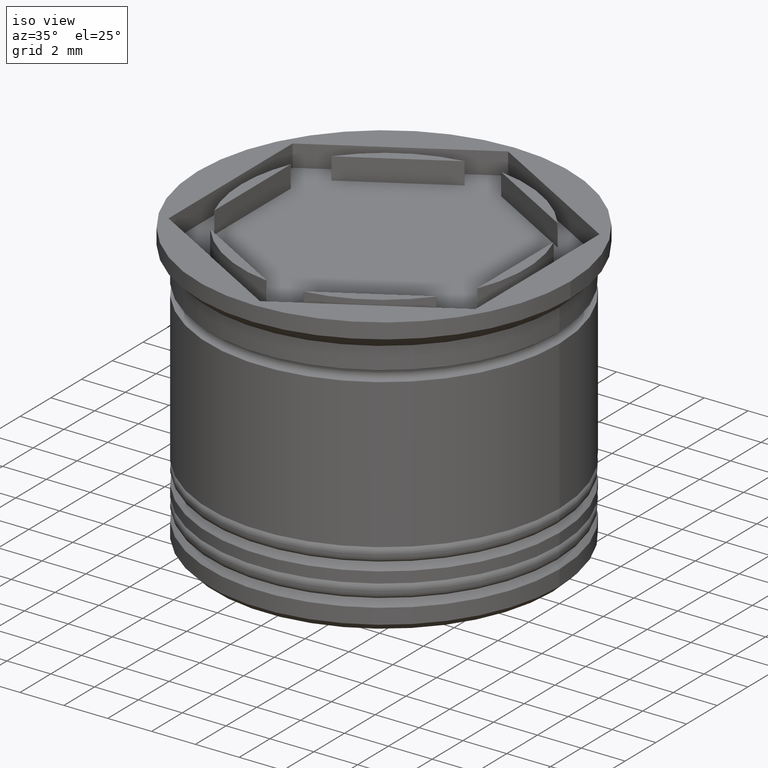
[diagram: clean part render]
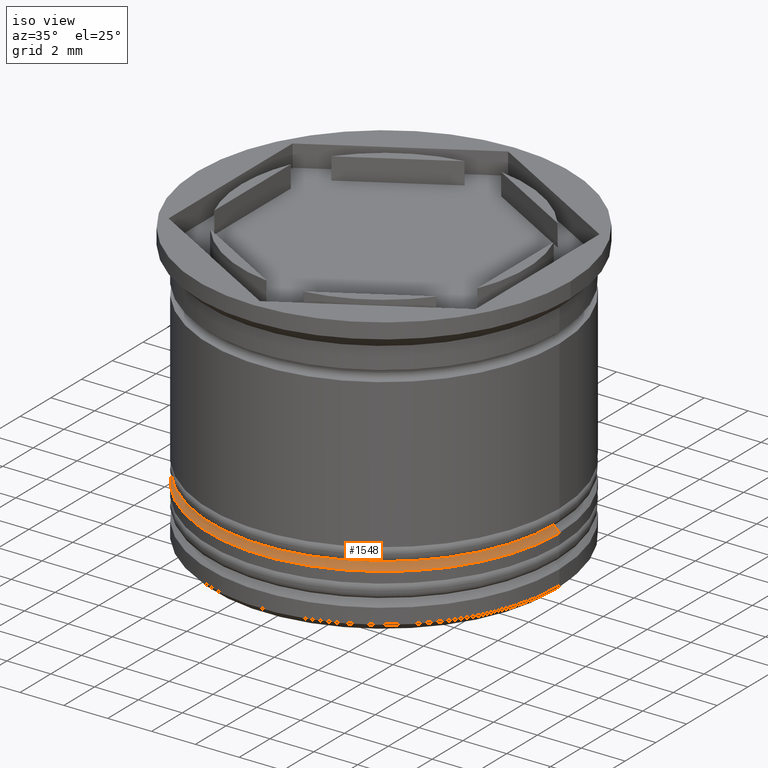
[diagram: same view with one face highlighted and labeled with its STEP entity id]
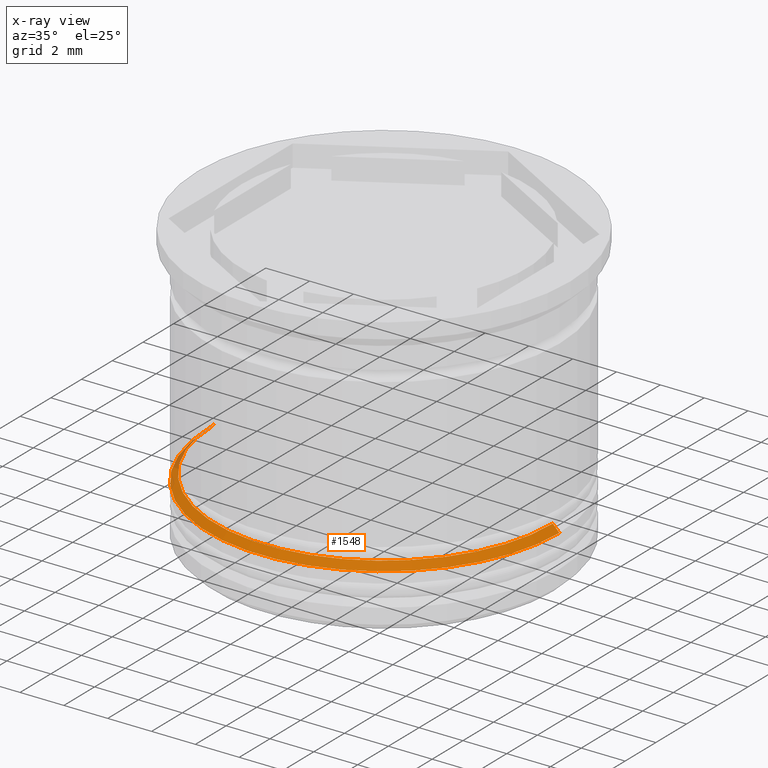
[diagram: x-ray of the same camera — body ghosted, the highlighted face saturated]
A machine part, iso view. The second image highlights one B-rep face of the part: STEP entity #1548.
The next image is the same camera in x-ray: the body ghosted, the highlighted face saturated — about 2% of this face is hidden behind the body in this view.
In plain terms, the highlighted conical surface has half-angle 45 deg.
Its self-contained STEP definition (entity closure, byte-faithful):
#157 = EDGE_CURVE ( 'NONE', #1529, #1002, #709, .T. ) ;
#247 = EDGE_CURVE ( 'NONE', #790, #1002, #942, .T. ) ;
#249 = CARTESIAN_POINT ( 'NONE',  ( 8.000000000000000000, 0.000000000000000000, -10.50000000000000355 ) ) ;
#255 = DIRECTION ( 'NONE',  ( -0.000000000000000000, -0.000000000000000000, 1.000000000000000000 ) ) ;
#397 = ORIENTED_EDGE ( 'NONE', *, *, #157, .T. ) ;
#402 = ORIENTED_EDGE ( 'NONE', *, *, #247, .F. ) ;
#456 = CARTESIAN_POINT ( 'NONE',  ( 7.499999999999991118, 9.184850993605138084E-16, -10.00000000000000000 ) ) ;
#546 = DIRECTION ( 'NONE',  ( -1.000000000000000000, 0.000000000000000000, 0.000000000000000000 ) ) ;
#632 = CARTESIAN_POINT ( 'NONE',  ( -8.000000000000000000, 9.797174393178825657E-16, -10.50000000000000355 ) ) ;
#643 = LINE ( 'NONE', #456, #1944 ) ;
#667 = AXIS2_PLACEMENT_3D ( 'NONE', #1089, #1699, #546 ) ;
#709 = LINE ( 'NONE', #1900, #1970 ) ;
#768 = CONICAL_SURFACE ( 'NONE', #667, 7.499999999999991118, 0.7853981633974533860 ) ;
#790 = VERTEX_POINT ( 'NONE', #249 ) ;
#834 = DIRECTION ( 'NONE',  ( -0.7071067811865512365, 0.000000000000000000, -0.7071067811865439090 ) ) ;
#880 = DIRECTION ( 'NONE',  ( -1.000000000000000000, 0.000000000000000000, 0.000000000000000000 ) ) ;
#917 = EDGE_CURVE ( 'NONE', #1096, #790, #643, .T. ) ;
#937 = EDGE_LOOP ( 'NONE', ( #1956, #1577, #397, #402 ) ) ;
#942 = CIRCLE ( 'NONE', #1864, 8.000000000000000000 ) ;
#1002 = VERTEX_POINT ( 'NONE', #632 ) ;
#1059 = DIRECTION ( 'NONE',  ( -1.000000000000000000, 0.000000000000000000, 0.000000000000000000 ) ) ;
#1089 = CARTESIAN_POINT ( 'NONE',  ( 0.000000000000000000, 0.000000000000000000, -10.00000000000000000 ) ) ;
#1096 = VERTEX_POINT ( 'NONE', #1129 ) ;
#1123 = CARTESIAN_POINT ( 'NONE',  ( -7.700000000000000178, 9.429780353434619030E-16, -10.20000000000000817 ) ) ;
#1129 = CARTESIAN_POINT ( 'NONE',  ( 7.700000000000000178, 0.000000000000000000, -10.20000000000000817 ) ) ;
#1149 = EDGE_CURVE ( 'NONE', #1529, #1096, #1660, .T. ) ;
#1291 = CARTESIAN_POINT ( 'NONE',  ( 0.000000000000000000, 0.000000000000000000, -10.50000000000000355 ) ) ;
#1311 = AXIS2_PLACEMENT_3D ( 'NONE', #1605, #255, #880 ) ;
#1529 = VERTEX_POINT ( 'NONE', #1123 ) ;
#1548 = ADVANCED_FACE ( 'NONE', ( #1890 ), #768, .T. ) ;
#1577 = ORIENTED_EDGE ( 'NONE', *, *, #1149, .F. ) ;
#1605 = CARTESIAN_POINT ( 'NONE',  ( 0.000000000000000000, 0.000000000000000000, -10.20000000000000817 ) ) ;
#1660 = CIRCLE ( 'NONE', #1311, 7.700000000000000178 ) ;
#1699 = DIRECTION ( 'NONE',  ( 0.000000000000000000, 0.000000000000000000, -1.000000000000000000 ) ) ;
#1808 = DIRECTION ( 'NONE',  ( 0.000000000000000000, 0.000000000000000000, -1.000000000000000000 ) ) ;
#1856 = DIRECTION ( 'NONE',  ( 0.7071067811865512365, 8.659560562354978464E-17, -0.7071067811865439090 ) ) ;
#1864 = AXIS2_PLACEMENT_3D ( 'NONE', #1291, #1808, #1059 ) ;
#1890 = FACE_OUTER_BOUND ( 'NONE', #937, .T. ) ;
#1900 = CARTESIAN_POINT ( 'NONE',  ( -7.499999999999991118, 0.000000000000000000, -10.00000000000000000 ) ) ;
#1944 = VECTOR ( 'NONE', #1856, 1000.000000000000000 ) ;
#1956 = ORIENTED_EDGE ( 'NONE', *, *, #917, .F. ) ;
#1970 = VECTOR ( 'NONE', #834, 1000.000000000000000 ) ;